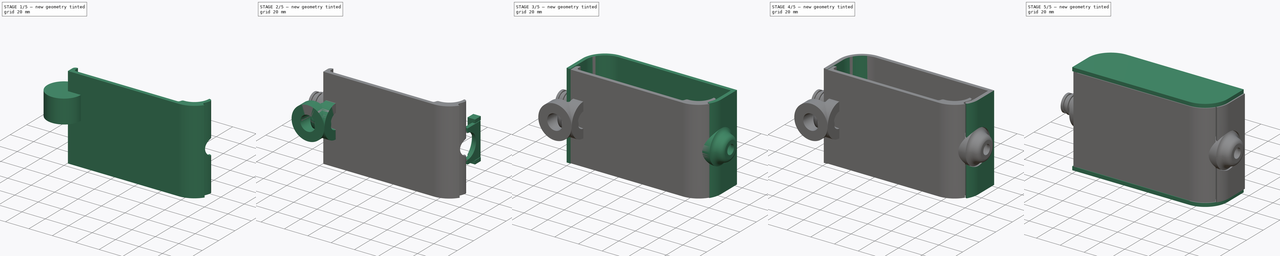
[diagram: build sequence overview — one tinted view per stage of 5, left to right]
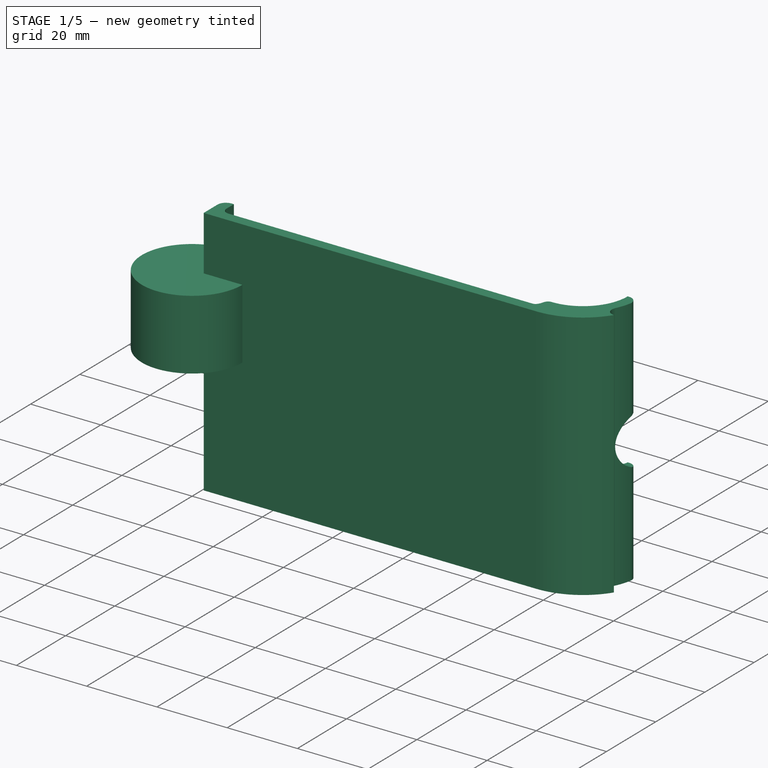
[diagram: stage 1 of 5 — iso view after this stage's code; geometry added in this stage tinted green]
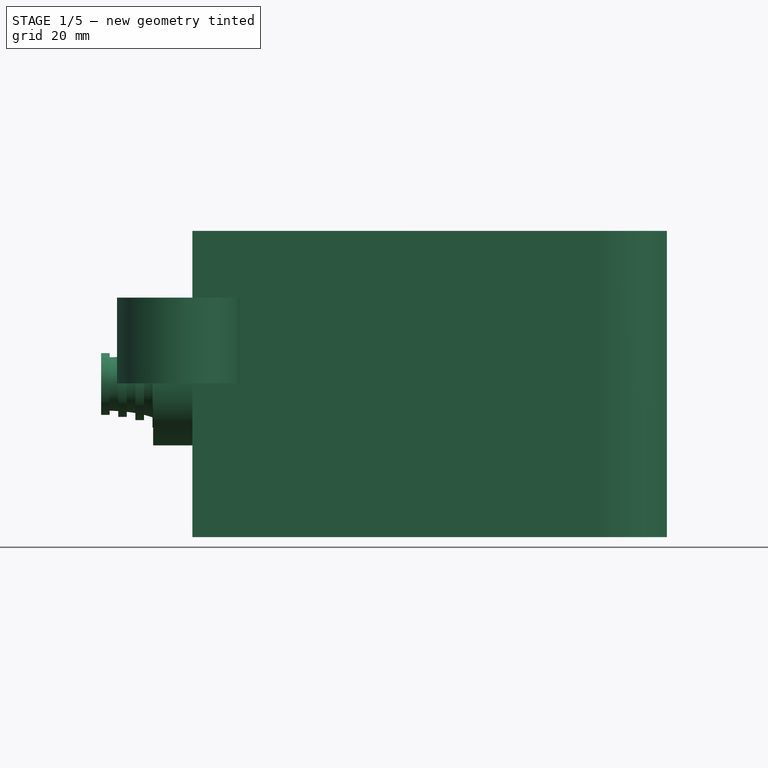
[diagram: stage 1 of 5 — front view after this stage's code; geometry added in this stage tinted green]
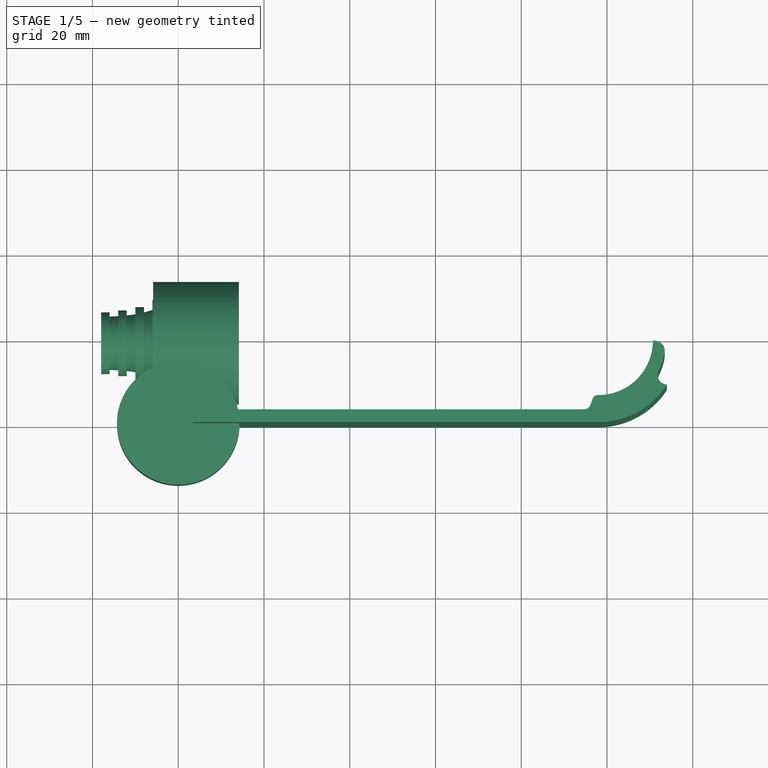
[diagram: stage 1 of 5 — top view after this stage's code; geometry added in this stage tinted green]
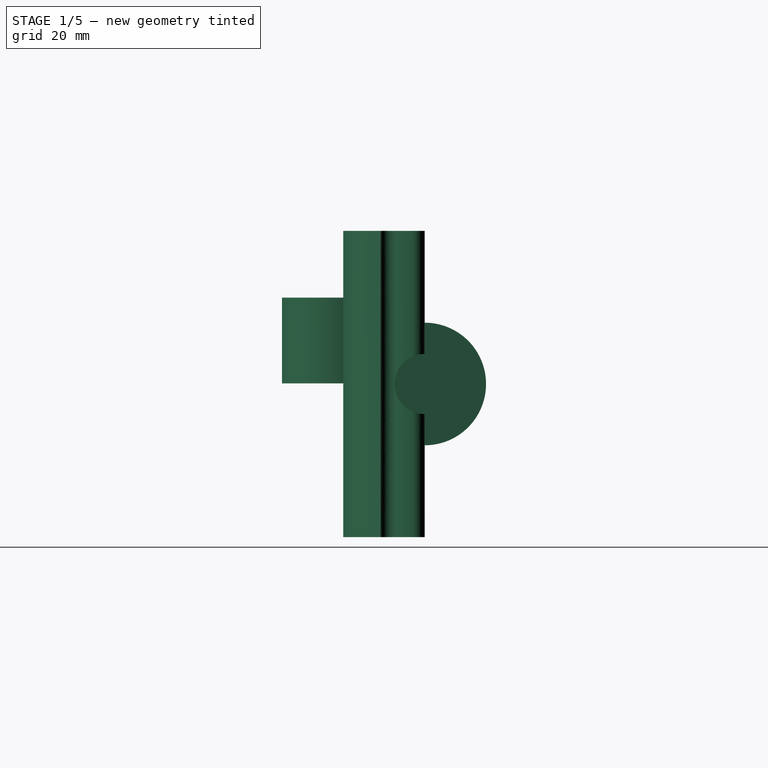
[diagram: stage 1 of 5 — right view after this stage's code; geometry added in this stage tinted green]
FCSTD DOCUMENT  (FreeCAD 0.19R0.19.2)
Label: enclosure_035
License: All rights reserved
LicenseURL: http://en.wikipedia.org/wiki/All_rights_reserved
objects: Part::MultiFuse×32, Part::Feature×26, Part::Revolution×26, Part::Cylinder×14, Sketcher::SketchObject×9, Part::Cut×8, Part::Extrusion×7, Part::Fillet×4, Part::Box×4, App::MeasureDistance×2
note: 130 computed .brp shape members not serialized (recipe doc carries the construction recipe); baked Part::Feature solids carry a one-line shape summary decoded from their .brp

FEATURE [Part::Extrusion] Extrude001  label="bottom"
  Base = -> Sketch001
  Dir = (0,0,1)
  DirMode = 2
  FaceMakerClass = Part::FaceMakerBullseye
  LengthFwd = 71.4
  LengthRev = 0
  Placement = pos=(0,0,0.3) rot=(0,0,1;0rad)
  Solid = true
  Symmetric = false
FEATURE [App::MeasureDistance] Distance  label="Distance: 0.69 mm"
  Distance = 0.685967
  P1 = (24.0138,2.9647,0.3)
  P2 = (23.8901,3,-0.373787)
FEATURE [App::MeasureDistance] Distance001  label="Distance: 0.53 mm"
  Distance = 0.533607
  P1 = (80.2939,3,72.2334)
  P2 = (80.281,2.99661,71.7)
FEATURE [Part::Fillet] Fillet001
  Base = -> Extrude001
  Edges = 1 edges r=2.4: [Edge17]
FEATURE [Part::Fillet] Fillet002  label="bottom001"
  Base = -> Fillet001
  Edges = 1 edges r=2.4: [Edge36]
FEATURE [Part::Cylinder] Cylinder002
  Angle = 360
  AttacherType = Attacher::AttachEngine3D
  Height = 20
  Placement = pos=(0,0,36.15) rot=(0,0,1;0rad)
  Radius = 4
FEATURE [Part::Cylinder] Cylinder003
  Angle = 360
  AttacherType = Attacher::AttachEngine3D
  Height = 10
  Placement = pos=(0,0,36.15) rot=(0,0,1;0rad)
  Radius = 4
FEATURE [Part::MultiFuse] Fusion009  label="removeToCreateHoleForPlugHousing"
  Placement = pos=(70,19,36.15) rot=(0,1,0;1.5708rad)
  Shapes = -> [Cylinder002,Cylinder003]
FEATURE [Part::Cut] Cut002  label="Bottom"
  Base = -> Fillet002
  Tool = -> Fusion009
FEATURE [Part::Cylinder] Cylinder010
  Angle = 360
  AttacherType = Attacher::AttachEngine3D
  Height = 20
  Placement = pos=(0,0,36.15) rot=(0,0,1;0rad)
  Radius = 14.3
FEATURE [Part::Cylinder] Cylinder011
  Angle = 360
  AttacherType = Attacher::AttachEngine3D
  Height = 10
  Placement = pos=(0,0,36.15) rot=(0,0,1;0rad)
  Radius = 4
FEATURE [Part::Cylinder] Cylinder012
  Angle = 360
  AttacherType = Attacher::AttachEngine3D
  Height = 20
  Placement = pos=(0,0,36.15) rot=(0,0,1;0rad)
  Radius = 7
FEATURE [Part::Cylinder] Cylinder013
  Angle = 360
  AttacherType = Attacher::AttachEngine3D
  Height = 10
  Placement = pos=(0,0,36.15) rot=(0,0,1;0rad)
  Radius = 4
FEATURE [Part::MultiFuse] Fusion032  label="removeToCreteHoleForPlugHousing003"
  Placement = pos=(70,19,36) rot=(0,1,0;1.5708rad)
  Shapes = -> [Cylinder012,Cylinder013]
FEATURE [Part::Cut] Cut007  label="bottom002"
  Base = -> Cut002
  Tool = -> Fusion032
FEATURE [Sketcher::SketchObject] Sketch008
  FullyConstrained = true
  sketch-geometry (54):
    g0: LineSegment StartX=-4.2 StartY=0 StartZ=0 EndX=-6.2 EndY=0 EndZ=0
    g1: LineSegment StartX=-14 StartY=-18 StartZ=0 EndX=-14 EndY=-26.5 EndZ=0
    g2: LineSegment StartX=-4.2 StartY=0 StartZ=0 EndX=-4.2 EndY=-13.4877 EndZ=0
    g3: Circle CenterX=-4.2 CenterY=-13.4877 CenterZ=0 NormalX=0 NormalY=0 NormalZ=1 AngleXU=0 Radius=1
    g4: Circle CenterX=-4.2 CenterY=-26.5 CenterZ=0 NormalX=0 NormalY=0 NormalZ=1 AngleXU=0 Radius=1
    g5: Circle CenterX=-8.2 CenterY=-26.5 CenterZ=0 NormalX=0 NormalY=0 NormalZ=1 AngleXU=0 Radius=1
    g6: BSplineCurve PolesCount=3 KnotsCount=2 Degree=2 IsPeriodic=0
    g7: GeomPoint X=-4.2 Y=-13.4877 Z=0
    g8: GeomPoint X=-8.2 Y=-26.5 Z=0
    g9: LineSegment StartX=-14 StartY=-26.5 StartZ=0 EndX=-8.2 EndY=-26.5 EndZ=0
    g10: LineSegment StartX=-10.15 StartY=-12 StartZ=0 EndX=-10.15 EndY=-14 EndZ=0
    g11: LineSegment StartX=-12.8401 StartY=-16 StartZ=0 EndX=-10.1571 EndY=-16 EndZ=0
    g12: LineSegment StartX=-10.15 StartY=-14 StartZ=0 EndX=-8.70761 EndY=-14 EndZ=0
    g13: LineSegment StartX=-12.8401 StartY=-16 StartZ=0 EndX=-12.8401 EndY=-17.6958 EndZ=0
    g14: LineSegment StartX=-10.15 StartY=-12 StartZ=0 EndX=-7.79258 EndY=-12 EndZ=0
    g15: Circle CenterX=-6.2215 CenterY=-2 CenterZ=0 NormalX=0 NormalY=0 NormalZ=1 AngleXU=0 Radius=1
    g16: Circle CenterX=-6.22762 CenterY=-2.58724 CenterZ=0 NormalX=0 NormalY=0 NormalZ=1 AngleXU=0 Radius=1
    g17: Circle CenterX=-6.32538 CenterY=-4 CenterZ=0 NormalX=0 NormalY=0 NormalZ=1 AngleXU=0 Radius=1
    g18: BSplineCurve PolesCount=3 KnotsCount=2 Degree=2 IsPeriodic=0
    g19: GeomPoint X=-6.2215 Y=-2 Z=0
    g20: GeomPoint X=-6.32538 Y=-4 Z=0
    g21: Circle CenterX=-6.48644 CenterY=-5.99526 CenterZ=0 NormalX=0 NormalY=0 NormalZ=1 AngleXU=0 Radius=1
    g22: Circle CenterX=-6.58486 CenterY=-6.99526 CenterZ=0 NormalX=0 NormalY=0 NormalZ=1 AngleXU=0 Radius=1
    g23: Circle CenterX=-6.77343 CenterY=-8 CenterZ=0 NormalX=0 NormalY=0 NormalZ=1 AngleXU=0 Radius=1
    g24: BSplineCurve PolesCount=3 KnotsCount=2 Degree=2 IsPeriodic=0
    g25: GeomPoint X=-6.48644 Y=-5.99526 Z=0
    g26: GeomPoint X=-6.77343 Y=-8 Z=0
    g27: Circle CenterX=-7.19003 CenterY=-10 CenterZ=0 NormalX=0 NormalY=0 NormalZ=1 AngleXU=0 Radius=1
    g28: Circle CenterX=-7.44407 CenterY=-11.0915 CenterZ=0 NormalX=0 NormalY=0 NormalZ=1 AngleXU=0 Radius=1
    g29: Circle CenterX=-7.79258 CenterY=-12 CenterZ=0 NormalX=0 NormalY=0 NormalZ=1 AngleXU=0 Radius=1
    g30: BSplineCurve PolesCount=3 KnotsCount=2 Degree=2 IsPeriodic=0
    g31: GeomPoint X=-7.19003 Y=-10 Z=0
    g32: GeomPoint X=-7.79258 Y=-12 Z=0
    g33: Circle CenterX=-8.70761 CenterY=-14 CenterZ=0 NormalX=0 NormalY=0 NormalZ=1 AngleXU=0 Radius=1
    g34: Circle CenterX=-9.33087 CenterY=-15.1837 CenterZ=0 NormalX=0 NormalY=0 NormalZ=1 AngleXU=0 Radius=1
    g35: Circle CenterX=-10.1571 CenterY=-16 CenterZ=0 NormalX=0 NormalY=0 NormalZ=1 AngleXU=0 Radius=1
    g36: BSplineCurve PolesCount=3 KnotsCount=2 Degree=2 IsPeriodic=0
    g37: GeomPoint X=-8.70761 Y=-14 Z=0
    g38: GeomPoint X=-10.1571 Y=-16 Z=0
    g39: Circle CenterX=-12.8401 CenterY=-17.6958 CenterZ=0 NormalX=0 NormalY=0 NormalZ=1 AngleXU=0 Radius=1
    g40: Circle CenterX=-13.3521 CenterY=-17.9027 CenterZ=0 NormalX=0 NormalY=0 NormalZ=1 AngleXU=0 Radius=1
    g41: Circle CenterX=-14 CenterY=-18 CenterZ=0 NormalX=0 NormalY=0 NormalZ=1 AngleXU=0 Radius=1
    g42: BSplineCurve PolesCount=3 KnotsCount=2 Degree=2 IsPeriodic=0
    g43: GeomPoint X=-12.8401 Y=-17.6958 Z=0
    g44: GeomPoint X=-14 Y=-18 Z=0
    g45: LineSegment StartX=-6.2 StartY=0 StartZ=0 EndX=-7.2 EndY=0 EndZ=0
    g46: LineSegment StartX=-7.2 StartY=0 StartZ=0 EndX=-7.2 EndY=-2 EndZ=0
    g47: LineSegment StartX=-7.2 StartY=-2 StartZ=0 EndX=-6.2215 EndY=-2 EndZ=0
    g48: LineSegment StartX=-6.32538 StartY=-4 StartZ=0 EndX=-7.65538 EndY=-4 EndZ=0
    g49: LineSegment StartX=-7.65538 StartY=-4 StartZ=0 EndX=-7.65538 EndY=-5.99526 EndZ=0
    g50: LineSegment StartX=-7.65538 StartY=-5.99526 StartZ=0 EndX=-6.48644 EndY=-5.99526 EndZ=0
    g51: LineSegment StartX=-6.77343 StartY=-8 StartZ=0 EndX=-8.43343 EndY=-8 EndZ=0
    g52: LineSegment StartX=-8.43343 StartY=-8 StartZ=0 EndX=-8.43343 EndY=-10 EndZ=0
    g53: LineSegment StartX=-8.43343 StartY=-10 StartZ=0 EndX=-7.19003 EndY=-10 EndZ=0
  constraints (112):
    c: Horizontal(g0)
    c: Distance(g0) = 2
    c: Block(g0)
    c: Vertical(g1)
    c: Coincident(g2,g0)
    c: Vertical(g2)
    c: Block(g2)
    c: Coincident(g6,g2)
    c: Weight(g3) = 1
    c: Equal(g3,g4)
    c: Equal(g3,g5)
    c: InternalAlignment(g3,g6)
    c: InternalAlignment(g4,g6)
    c: InternalAlignment(g5,g6)
    c: InternalAlignment(g7,g6)
    c: InternalAlignment(g8,g6)
    c: Block(g6)
    c: Coincident(g9,g1)
    c: Coincident(g9,g6)
    c: Horizontal(g9)
    c: Vertical(g10)
    c: Block(g10)
    c: Horizontal(g11)
    c: Block(g11)
    c: Coincident(g12,g10)
    c: Horizontal(g12)
    c: Block(g12)
    c: Coincident(g13,g11)
    c: Vertical(g13)
    c: Block(g13)
    c: Coincident(g14,g10)
    c: Horizontal(g14)
    c: Block(g14)
    c: Block(g9)
    c: Block(g1)
    c: Weight(g15) = 1
    c: Equal(g15,g16)
    c: Equal(g15,g17)
    c: InternalAlignment(g15,g18)
    c: InternalAlignment(g16,g18)
    c: InternalAlignment(g17,g18)
    c: InternalAlignment(g19,g18)
    c: InternalAlignment(g20,g18)
    c: Weight(g21) = 1
    c: Equal(g21,g22)
    c: Equal(g21,g23)
    c: InternalAlignment(g21,g24)
    c: InternalAlignment(g22,g24)
    c: InternalAlignment(g23,g24)
    c: InternalAlignment(g25,g24)
    c: InternalAlignment(g26,g24)
    c: Weight(g27) = 1
    c: Equal(g27,g28)
    c: Equal(g27,g29)
    c: Coincident(g30,g14)
    c: InternalAlignment(g27,g30)
    c: InternalAlignment(g28,g30)
    c: InternalAlignment(g29,g30)
    c: InternalAlignment(g31,g30)
    c: InternalAlignment(g32,g30)
    c: Coincident(g36,g12)
    c: Weight(g33) = 1
    c: Equal(g33,g34)
    c: Equal(g33,g35)
    c: Coincident(g36,g11)
    c: InternalAlignment(g33,g36)
    c: InternalAlignment(g34,g36)
    c: InternalAlignment(g35,g36)
    c: InternalAlignment(g37,g36)
    c: InternalAlignment(g38,g36)
    c: Coincident(g42,g13)
    c: Weight(g39) = 1
    c: Equal(g39,g40)
    c: Equal(g39,g41)
    c: Coincident(g42,g1)
    c: InternalAlignment(g39,g42)
    c: InternalAlignment(g40,g42)
    c: InternalAlignment(g41,g42)
    c: InternalAlignment(g43,g42)
    c: InternalAlignment(g44,g42)
    c: Block(g18)
    c: Block(g24)
    c: Block(g30)
    c: Block(g36)
    c: Block(g42)
    c: Horizontal(g45)
    c: Coincident(g45,g0)
    c: Vertical(g46)
    c: Coincident(g46,g45)
    c: Coincident(g47,g46)
    c: Coincident(g47,g18)
    c: Horizontal(g47)
    c: Block(g46)
    c: Coincident(g48,g18)
    c: Horizontal(g48)
    c: Distance(g48) = 1.33
    c: Vertical(g49)
    c: Coincident(g49,g48)
    c: Coincident(g50,g49)
    c: Coincident(g50,g24)
    c: Horizontal(g50)
    c: Tangent(g50,g22)
    c: Horizontal(g51)
    c: Coincident(g51,g24)
    c: Block(g51)
    c: Vertical(g52)
    c: Block(g52)
    c: Coincident(g52,g51)
    c: Coincident(g53,g52)
    c: Coincident(g53,g30)
    c: Horizontal(g53)
    c: Distance(g1) = 8.5
FEATURE [Part::Feature] Face024
  shape: bbox 9.8 x 26.5 x 2e-07 mm, 1 faces, 0 solids (baked)
FEATURE [Part::Revolution] Revolve024
  Angle = 360
  Axis = (0,1,0)
  Base = (0,0,0)
  FaceMakerClass = Part::FaceMakerBullseye
  Placement = pos=(0,0,0) rot=(0,0,1;1.5708rad)
  Solid = false
  Source = -> Face024
  Symmetric = false
FEATURE [Part::Feature] Face025
  shape: bbox 9.8 x 26.5 x 2e-07 mm, 1 faces, 0 solids (baked)
FEATURE [Part::Revolution] Revolve025
  Angle = 360
  Axis = (0,1,0)
  Base = (0,0,0)
  FaceMakerClass = Part::FaceMakerBullseye
  Placement = pos=(0,0,0) rot=(0,0,1;1.5708rad)
  Solid = false
  Source = -> Face025
  Symmetric = false
FEATURE [Part::MultiFuse] Fusion033
  Placement = pos=(-18,19,36) rot=(0,0,1;0rad)
  Shapes = -> [Revolve025,Revolve024]
FEATURE [Part::Cylinder] Cylinder014
  Angle = 360
  AttacherType = Attacher::AttachEngine3D
  Height = 20
  Placement = pos=(0,0,36.15) rot=(0,0,1;0rad)
  Radius = 14.3
FEATURE [Part::Cylinder] Cylinder015
  Angle = 360
  AttacherType = Attacher::AttachEngine3D
  Height = 10
  Placement = pos=(0,0,36.15) rot=(0,0,1;0rad)
  Radius = 4
FEATURE [Part::MultiFuse] Fusion034  label="removeToCreteHoleForPlugHousing004"
  Placement = pos=(-42,19,36) rot=(0,1,0;1.5708rad)
  Shapes = -> [Cylinder014,Cylinder015]
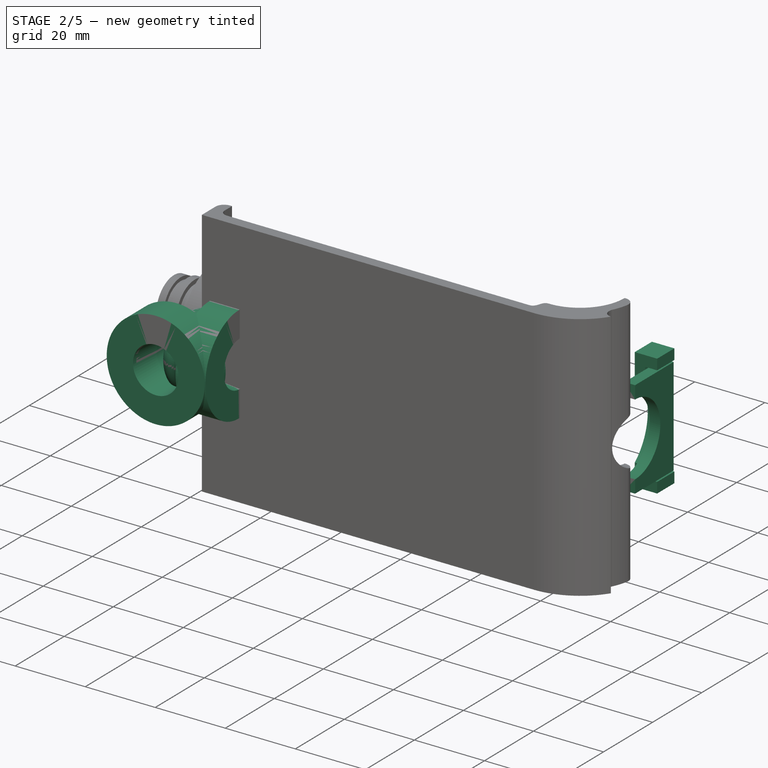
[diagram: stage 2 of 5 — iso view after this stage's code; geometry added in this stage tinted green]
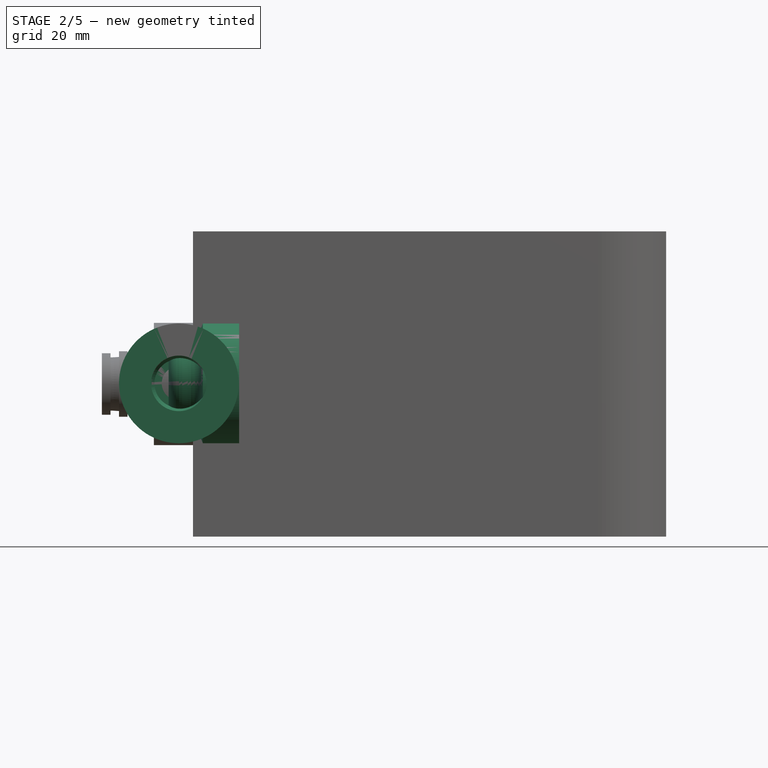
[diagram: stage 2 of 5 — front view after this stage's code; geometry added in this stage tinted green]
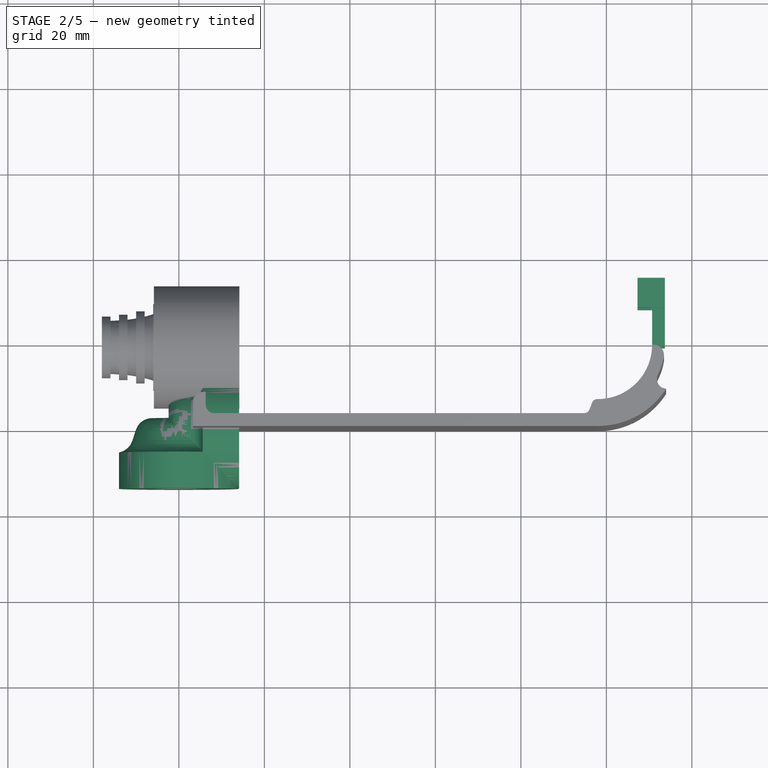
[diagram: stage 2 of 5 — top view after this stage's code; geometry added in this stage tinted green]
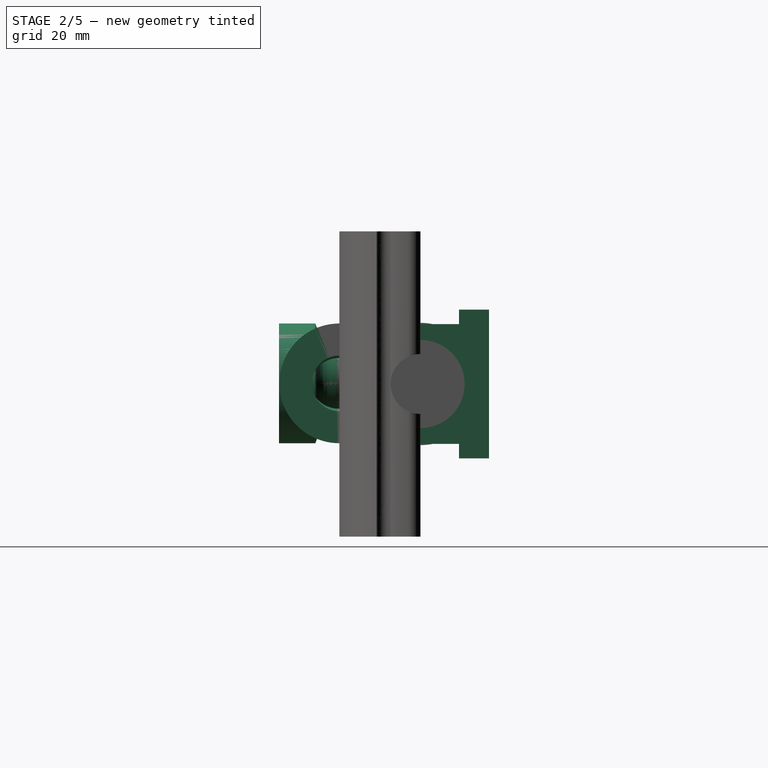
[diagram: stage 2 of 5 — right view after this stage's code; geometry added in this stage tinted green]
FEATURE [Part::Feature] Face016
  shape: bbox 10 x 16.5 x 2e-07 mm, 1 faces, 0 solids (baked)
FEATURE [Part::Revolution] Revolve019  label="plugHousing033"
  Angle = 360
  Axis = (0,1,0)
  Base = (0,0,0)
  FaceMakerClass = Part::FaceMakerBullseye
  Placement = pos=(0,0,36.15) rot=(0,0,1;0rad)
  Solid = false
  Source = -> Face016
  Symmetric = false
FEATURE [Part::Feature] Face017
  shape: bbox 10 x 16.5 x 2e-07 mm, 1 faces, 0 solids (baked)
FEATURE [Part::Revolution] Revolve020  label="plugHousing034"
  Angle = 360
  Axis = (0,1,0)
  Base = (0,0,0)
  FaceMakerClass = Part::FaceMakerBullseye
  Placement = pos=(0,0,36.15) rot=(0,0,1;0rad)
  Solid = false
  Source = -> Face017
  Symmetric = false
FEATURE [Part::Feature] Face018
  shape: bbox 10 x 16.5 x 2e-07 mm, 1 faces, 0 solids (baked)
FEATURE [Part::Revolution] Revolve016  label="plugHousing030"
  Angle = 360
  Axis = (0,1,0)
  Base = (0,0,0)
  FaceMakerClass = Part::FaceMakerBullseye
  Placement = pos=(0,0,36.15) rot=(0,0,1;0rad)
  Solid = false
  Source = -> Face018
  Symmetric = false
FEATURE [Part::MultiFuse] Fusion020  label="plugHousing038"
  Placement = pos=(0,0,0) rot=(0,0,1;1.5708rad)
  Shapes = -> [Revolve016,Revolve020]
FEATURE [Part::Feature] Face019
  shape: bbox 10 x 16.5 x 2e-07 mm, 1 faces, 0 solids (baked)
FEATURE [Part::Feature] Face020
  shape: bbox 10 x 16.5 x 2e-07 mm, 1 faces, 0 solids (baked)
FEATURE [Part::Revolution] Revolve017  label="plugHousing031"
  Angle = 360
  Axis = (0,1,0)
  Base = (0,0,0)
  FaceMakerClass = Part::FaceMakerBullseye
  Placement = pos=(0,0,36.15) rot=(0,0,1;0rad)
  Solid = false
  Source = -> Face020
  Symmetric = false
FEATURE [Part::MultiFuse] Fusion021  label="plugHousing039"
  Placement = pos=(0,0,0) rot=(0,0,1;1.5708rad)
  Shapes = -> [Revolve019,Revolve017]
FEATURE [Part::Revolution] Revolve022  label="plugHousing043"
  Angle = 360
  Axis = (0,1,0)
  Base = (0,0,0)
  FaceMakerClass = Part::FaceMakerBullseye
  Placement = pos=(0,0,36.15) rot=(0,0,1;0rad)
  Solid = false
  Source = -> Face019
  Symmetric = false
FEATURE [Part::Feature] Face021
  shape: bbox 10 x 16.5 x 2e-07 mm, 1 faces, 0 solids (baked)
FEATURE [Part::Revolution] Revolve023  label="plugHousing044"
  Angle = 360
  Axis = (0,1,0)
  Base = (0,0,0)
  FaceMakerClass = Part::FaceMakerBullseye
  Placement = pos=(0,0,36.15) rot=(0,0,1;0rad)
  Solid = false
  Source = -> Face021
  Symmetric = false
FEATURE [Part::Box] Box001  label="Cube001"
  AttacherType = Attacher::AttachEngine3D
  Height = 28
  Length = 3
  Placement = pos=(110.7,19,22) rot=(0,0,1;0rad)
  Width = 15.7
FEATURE [Part::Cylinder] Cylinder008
  Angle = 360
  AttacherType = Attacher::AttachEngine3D
  Height = 20
  Placement = pos=(0,0,36.15) rot=(0,0,1;0rad)
  Radius = 10.3
FEATURE [Part::Cylinder] Cylinder009
  Angle = 360
  AttacherType = Attacher::AttachEngine3D
  Height = 10
  Placement = pos=(0,0,36.15) rot=(0,0,1;0rad)
  Radius = 4
FEATURE [Part::MultiFuse] Fusion027  label="removeToCreteHoleForPlugHousing001"
  Placement = pos=(70,19,36) rot=(0,1,0;1.5708rad)
  Shapes = -> [Cylinder008,Cylinder009]
FEATURE [Part::Cut] Cut005  label="plugHousingTab"
  Base = -> Box001
  Tool = -> Fusion027
FEATURE [Part::Box] Box002  label="Cube002"
  AttacherType = Attacher::AttachEngine3D
  Height = 28.8
  Length = 3
  Placement = pos=(107.3,28,21.6) rot=(0,0,1;0rad)
  Width = 7
FEATURE [Part::Box] Box003  label="Cube003"
  AttacherType = Attacher::AttachEngine3D
  Height = 3
  Length = 6.4
  Placement = pos=(107.3,28,18.6) rot=(0,0,1;0rad)
  Width = 7
FEATURE [Part::Box] Box004  label="Cube004"
  AttacherType = Attacher::AttachEngine3D
  Height = 3
  Length = 6.4
  Placement = pos=(107.3,28,50.4) rot=(0,0,1;0rad)
  Width = 7
FEATURE [Part::MultiFuse] Fusion029  label="plugHousingBracketHolder"
  Shapes = -> [Box004,Box002,Box003]
FEATURE [Part::MultiFuse] Fusion030  label="removeToCreteHoleForPlugHousing002"
  Placement = pos=(70,19,36) rot=(0,1,0;1.5708rad)
  Shapes = -> [Cylinder010,Cylinder011]
FEATURE [Part::Cut] Cut006  label="plugHousingBracketHolder001"
  Base = -> Fusion029
  Tool = -> Fusion030
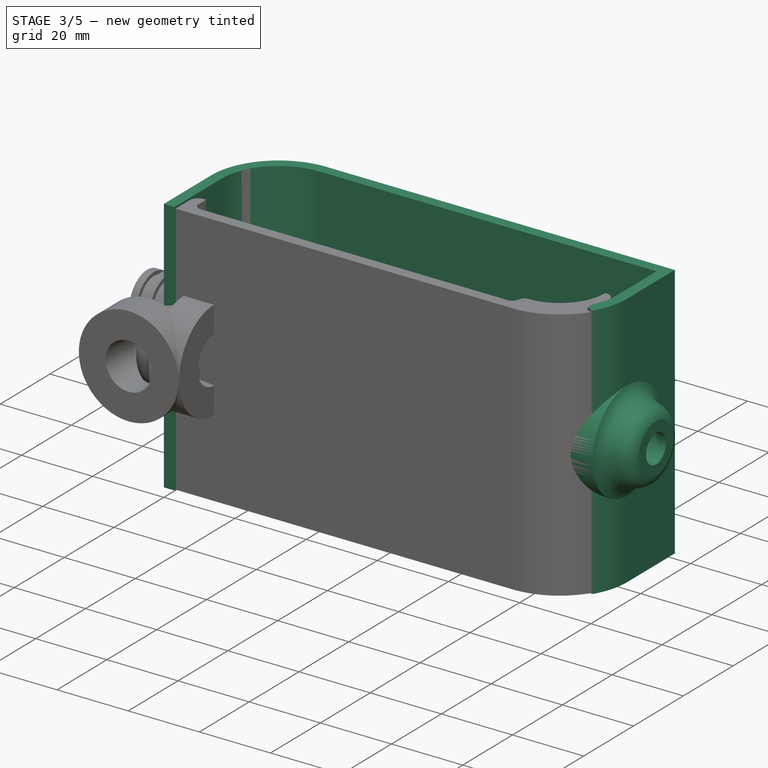
[diagram: stage 3 of 5 — iso view after this stage's code; geometry added in this stage tinted green]
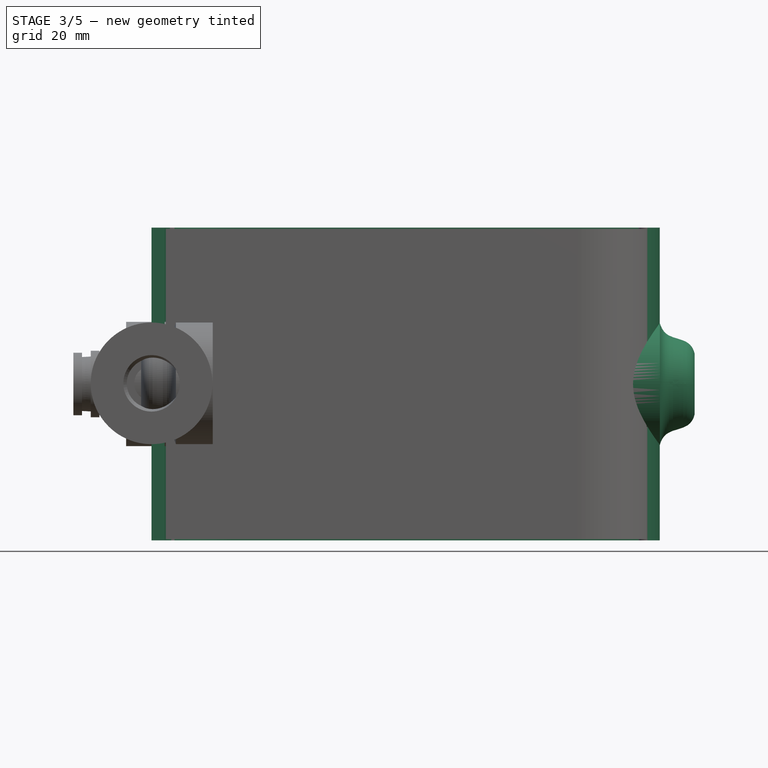
[diagram: stage 3 of 5 — front view after this stage's code; geometry added in this stage tinted green]
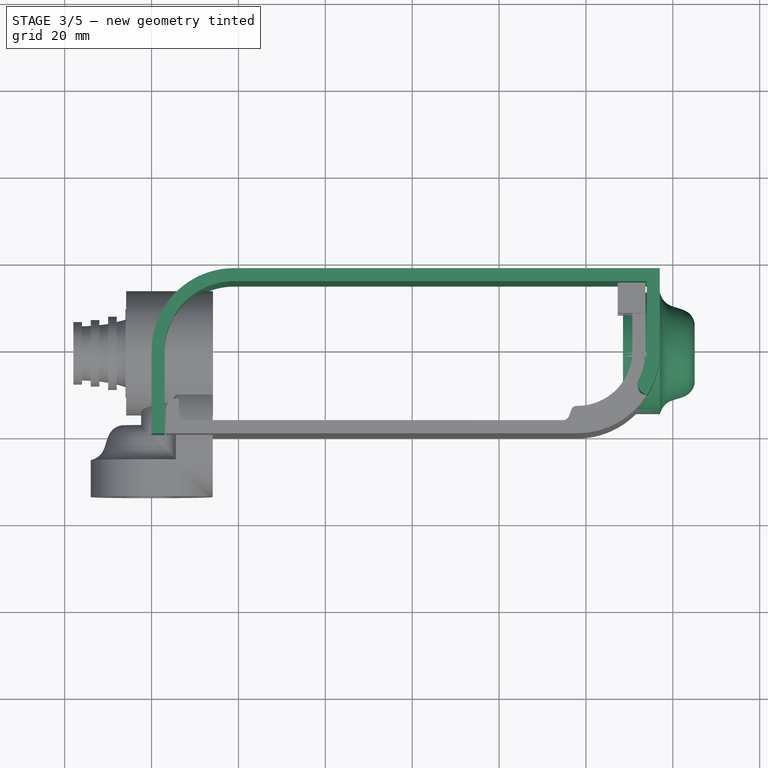
[diagram: stage 3 of 5 — top view after this stage's code; geometry added in this stage tinted green]
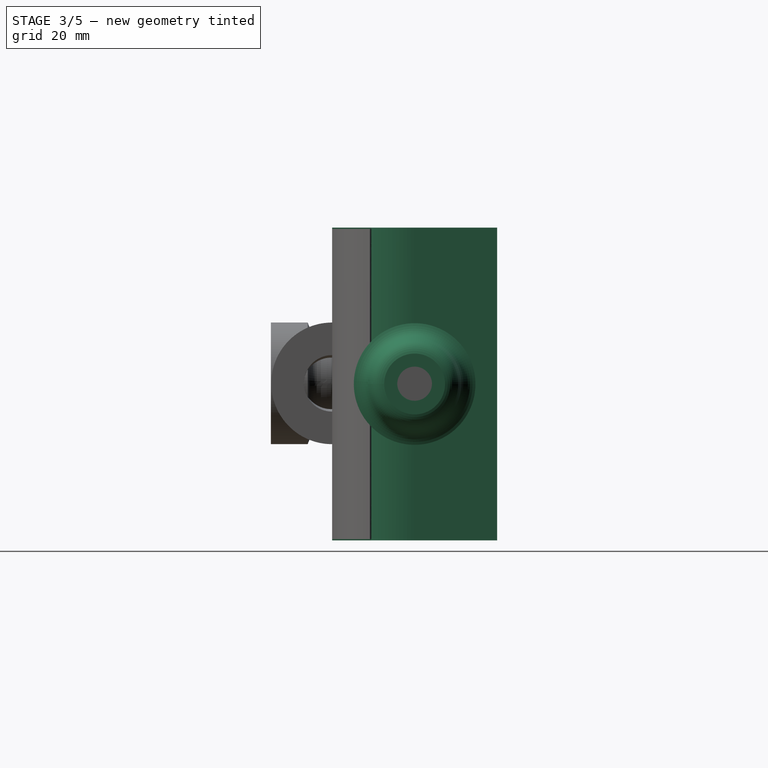
[diagram: stage 3 of 5 — right view after this stage's code; geometry added in this stage tinted green]
FEATURE [Sketcher::SketchObject] Sketch  label="topSketch"
  FullyConstrained = true
  sketch-geometry (13):
    g0: LineSegment StartX=117 StartY=19 StartZ=0 EndX=117 EndY=38 EndZ=0
    g1: ArcOfCircle CenterX=98 CenterY=19 CenterZ=0 NormalX=0 NormalY=0 NormalZ=1 AngleXU=0 Radius=19 StartAngle=5.7297 EndAngle=6.28319
    g2: LineSegment StartX=0 StartY=3 StartZ=0 EndX=0 EndY=19 EndZ=0
    g3: LineSegment StartX=19 StartY=38 StartZ=0 EndX=117 EndY=38 EndZ=0
    g4: ArcOfCircle CenterX=19 CenterY=19 CenterZ=0 NormalX=0 NormalY=0 NormalZ=1 AngleXU=0 Radius=19 StartAngle=1.5708 EndAngle=3.14159
    g5: ArcOfCircle CenterX=19 CenterY=19 CenterZ=0 NormalX=0 NormalY=0 NormalZ=1 AngleXU=0 Radius=16 StartAngle=1.5708 EndAngle=3.14159
    g6: ArcOfCircle CenterX=98 CenterY=19 CenterZ=0 NormalX=0 NormalY=0 NormalZ=1 AngleXU=0 Radius=16 StartAngle=5.60905 EndAngle=6.28319
    g7: LineSegment StartX=114 StartY=19 StartZ=0 EndX=114 EndY=35 EndZ=0
    g8: LineSegment StartX=110.5 StartY=9.01251 StartZ=0 EndX=114.163 EndY=9.01251 EndZ=0
    g9: LineSegment StartX=114 StartY=35 StartZ=0 EndX=19 EndY=35 EndZ=0
    g10: LineSegment StartX=0 StartY=3 StartZ=0 EndX=0 EndY=0 EndZ=0
    g11: LineSegment StartX=3 StartY=0 StartZ=0 EndX=0 EndY=0 EndZ=0
    g12: LineSegment StartX=3 StartY=19 StartZ=0 EndX=3 EndY=0 EndZ=0
  constraints (33):
    c: Vertical(g0)
    c: Distance(g0) = 19
    c: Block(g0)
    c: Coincident(g1,g0)
    c: Block(g1)
    c: Vertical(g2)
    c: Block(g2)
    c: Coincident(g3,g0)
    c: Horizontal(g3)
    c: Distance(g3) = 98
    c: Coincident(g4,g3)
    c: Coincident(g4,g2)
    c: Block(g4)
    c: Coincident(g5,g4)
    c: Coincident(g6,g1)
    c: Block(g6)
    c: Block(g5)
    c: Coincident(g7,g6)
    c: Vertical(g7)
    c: Coincident(g8,g6)
    c: Coincident(g8,g1)
    c: Coincident(g9,g7)
    c: Coincident(g9,g5)
    c: Horizontal(g9)
    c: Tangent(g9,g5)
    c: Coincident(g10,g2)
    c: Distance(g10) = 3
    c: Vertical(g10)
    c: Coincident(g11,g10)
    c: Horizontal(g11)
    c: Coincident(g12,g5)
    c: Coincident(g12,g11)
    c: Vertical(g12)
FEATURE [Sketcher::SketchObject] Sketch001  label="bottomSketch"
  FullyConstrained = true
  sketch-geometry (32):
    g0: LineSegment StartX=3.3 StartY=-6.03275e-07 StartZ=0 EndX=98 EndY=-6.03275e-07 EndZ=0
    g1: ArcOfCircle CenterX=98 CenterY=19 CenterZ=0 NormalX=0 NormalY=0 NormalZ=1 AngleXU=0 Radius=19 StartAngle=4.71239 EndAngle=5.71103
    g2: LineSegment StartX=6.3 StartY=8 StartZ=0 EndX=3.3 EndY=8 EndZ=0
    g3: LineSegment StartX=3.3 StartY=8 StartZ=0 EndX=3.3 EndY=-6.03275e-07 EndZ=0
    g4: ArcOfCircle CenterX=8.3 CenterY=5 CenterZ=0 NormalX=0 NormalY=0 NormalZ=1 AngleXU=0 Radius=2 StartAngle=3.14159 EndAngle=4.71239
    g5: LineSegment StartX=6.3 StartY=8 StartZ=0 EndX=6.3 EndY=5 EndZ=0
    g6: ArcOfCircle CenterX=98 CenterY=19 CenterZ=0 NormalX=0 NormalY=0 NormalZ=1 AngleXU=0 Radius=12.7 StartAngle=4.71239 EndAngle=6.28319
    g7: LineSegment StartX=94.7 StartY=3 StartZ=0 EndX=8.3 EndY=3 EndZ=0
    g8-g12: Circle x5 (B-spline internal-alignment scaffolding for g13; pole/knot coordinates omitted)
    g13: BSplineCurve PolesCount=5 KnotsCount=3 Degree=3 IsPeriodic=0
    g14: GeomPoint X=98 Y=6.3 Z=0
    g15: GeomPoint X=96.3938 Y=4.71946 Z=0
    g16: GeomPoint X=94.7 Y=3 Z=0
    g17-g23: Circle x7 (B-spline internal-alignment scaffolding for g24; pole/knot coordinates omitted)
    g24: BSplineCurve PolesCount=7 KnotsCount=5 Degree=3 IsPeriodic=0
    g25-g29: GeomPoint x5 (B-spline internal-alignment scaffolding for g24; pole/knot coordinates omitted)
    g30: ArcOfCircle CenterX=98 CenterY=19 CenterZ=0 NormalX=0 NormalY=0 NormalZ=1 AngleXU=0 Radius=15.7 StartAngle=5.81226 EndAngle=6.28319
    g31: LineSegment StartX=110.7 StartY=19 StartZ=0 EndX=113.7 EndY=19 EndZ=0
  constraints (41):
    c: Horizontal(g0)
    c: Coincident(g1,g0)
    c: Block(g1)
    c: Horizontal(g2)
    c: Distance(g2) = 3
    c: Coincident(g3,g2)
    c: Vertical(g3)
    c: Coincident(g3,g0)
    c: Block(g4)
    c: Block(g2)
    c: Coincident(g5,g2)
    c: Coincident(g5,g4)
    c: Vertical(g5)
    c: Coincident(g6,g1)
    c: Block(g6)
    c: Coincident(g7,g4)
    c: Horizontal(g7)
    c: Block(g0)
    c: Block(g7)
    c: Block(g3)
    c: Coincident(g13,g6)
    c: Weight(g8) = 1
    c: Equal(g8, g9-g12) x4
    c: Coincident(g13,g7)
    c: InternalAlignment(g8-g12 -> g13) x5
    c: InternalAlignment(g14,g13)
    c: InternalAlignment(g15,g13)
    c: InternalAlignment(g16,g13)
    c: Block(g13)
    c: Weight(g17) = 1
    c: Equal(g17, g18-g23) x6
    c: Coincident(g24,g1)
    c: InternalAlignment(g17-g23 -> g24) x7
    c: InternalAlignment(g25-g29 -> g24) x5
    c: Block(g24)
    c: Coincident(g30,g24)
    c: Coincident(g31,g6)
    c: Coincident(g31,g30)
    c: Horizontal(g31)
    c: Block(g31)
    c: Block(g30)
FEATURE [Part::Extrusion] Extrude  label="top"
  Base = -> Sketch
  Dir = (0,0,1)
  DirMode = 2
  FaceMakerClass = Part::FaceMakerBullseye
  LengthFwd = 72
  LengthRev = 0
  Solid = true
  Symmetric = false
FEATURE [Part::Fillet] Fillet003  label="top001"
  Base = -> Extrude
  Edges = 1 edges r=2: [Edge1]
FEATURE [Part::Feature] Face004
  shape: bbox 10 x 16.5 x 2e-07 mm, 1 faces, 0 solids (baked)
FEATURE [Part::Revolution] Revolve006  label="plugHousing010"
  Angle = 360
  Axis = (0,1,0)
  Base = (0,0,0)
  FaceMakerClass = Part::FaceMakerBullseye
  Placement = pos=(0,0,36.15) rot=(0,0,1;0rad)
  Solid = false
  Source = -> Face004
  Symmetric = false
FEATURE [Part::Feature] Face005
  shape: bbox 10 x 16.5 x 2e-07 mm, 1 faces, 0 solids (baked)
FEATURE [Part::Revolution] Revolve007  label="plugHousing011"
  Angle = 360
  Axis = (0,1,0)
  Base = (0,0,0)
  FaceMakerClass = Part::FaceMakerBullseye
  Placement = pos=(0,0,36.15) rot=(0,0,1;0rad)
  Solid = false
  Source = -> Face005
  Symmetric = false
FEATURE [Part::Feature] Face006
  shape: bbox 10 x 16.5 x 2e-07 mm, 1 faces, 0 solids (baked)
FEATURE [Part::Revolution] Revolve004  label="plugHousing007"
  Angle = 360
  Axis = (0,1,0)
  Base = (0,0,0)
  FaceMakerClass = Part::FaceMakerBullseye
  Placement = pos=(0,0,36.15) rot=(0,0,1;0rad)
  Solid = false
  Source = -> Face006
  Symmetric = false
FEATURE [Part::Feature] Face007
  shape: bbox 10 x 16.5 x 2e-07 mm, 1 faces, 0 solids (baked)
FEATURE [Part::Revolution] Revolve005  label="plugHousing008"
  Angle = 360
  Axis = (0,1,0)
  Base = (0,0,0)
  FaceMakerClass = Part::FaceMakerBullseye
  Placement = pos=(0,0,36.15) rot=(0,0,1;0rad)
  Solid = false
  Source = -> Face007
  Symmetric = false
FEATURE [Part::MultiFuse] Fusion005  label="plugHousing012"
  Placement = pos=(0,0,0) rot=(0,0,1;1.5708rad)
  Shapes = -> [Revolve006,Revolve005]
FEATURE [Part::Cylinder] Cylinder004
  Angle = 360
  AttacherType = Attacher::AttachEngine3D
  Height = 20
  Placement = pos=(0,0,36.15) rot=(0,0,1;0rad)
  Radius = 4
FEATURE [Part::Cylinder] Cylinder005
  Angle = 360
  AttacherType = Attacher::AttachEngine3D
  Height = 10
  Placement = pos=(0,0,36.15) rot=(0,0,1;0rad)
  Radius = 4
FEATURE [Part::MultiFuse] Fusion010  label="removeToCreateHoleForPlugHousing001"
  Placement = pos=(70,19,36.15) rot=(0,1,0;1.5708rad)
  Shapes = -> [Cylinder004,Cylinder005]
FEATURE [Part::Cut] Cut001
  Base = -> Fillet003
  Tool = -> Fusion010
FEATURE [Part::MultiFuse] Fusion023  label="plugHousing041"
  Placement = pos=(0,19,0) rot=(0,0,1;3.14159rad)
  Shapes = -> [Fusion021,Fusion020]
FEATURE [Part::Feature] Face022
  shape: bbox 10 x 16.5 x 2e-07 mm, 1 faces, 0 solids (baked)
FEATURE [Part::Revolution] Revolve018  label="plugHousing032"
  Angle = 360
  Axis = (0,1,0)
  Base = (0,0,0)
  FaceMakerClass = Part::FaceMakerBullseye
  Placement = pos=(0,0,36.15) rot=(0,0,1;0rad)
  Solid = false
  Source = -> Face022
  Symmetric = false
FEATURE [Part::MultiFuse] Fusion022  label="plugHousing040"
  Placement = pos=(0,0,0) rot=(0,0,1;1.5708rad)
  Shapes = -> [Revolve018,Revolve023]
FEATURE [Part::Feature] Face023
  shape: bbox 10 x 16.5 x 2e-07 mm, 1 faces, 0 solids (baked)
FEATURE [Part::Revolution] Revolve021  label="plugHousing035"
  Angle = 360
  Axis = (0,1,0)
  Base = (0,0,0)
  FaceMakerClass = Part::FaceMakerBullseye
  Placement = pos=(0,0,36.15) rot=(0,0,1;0rad)
  Solid = false
  Source = -> Face023
  Symmetric = false
FEATURE [Part::MultiFuse] Fusion018  label="plugHousing036"
  Placement = pos=(0,0,0) rot=(0,0,1;1.5708rad)
  Shapes = -> [Revolve022,Revolve021]
FEATURE [Part::MultiFuse] Fusion019  label="plugHousing037"
  Placement = pos=(0,19,0) rot=(0,0,1;3.14159rad)
  Shapes = -> [Fusion018,Fusion022]
FEATURE [Part::MultiFuse] Fusion024  label="plugHousing042"
  Placement = pos=(122.621,0,-0.15) rot=(0,0,1;0rad)
  Shapes = -> [Fusion023,Fusion019]
FEATURE [Part::MultiFuse] Fusion028  label="plugHousing045"
  Shapes = -> [Fusion024,Cut005]
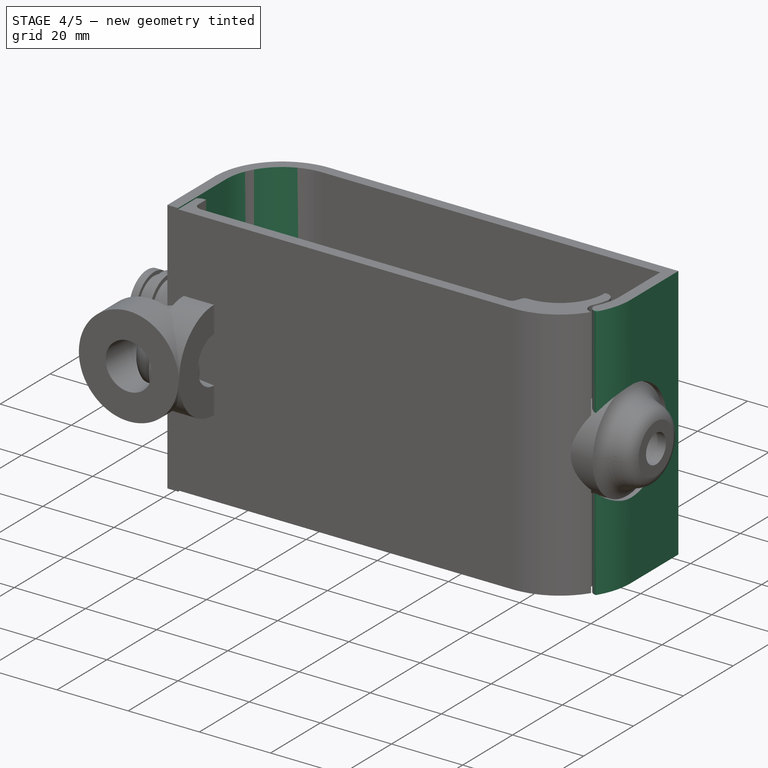
[diagram: stage 4 of 5 — iso view after this stage's code; geometry added in this stage tinted green]
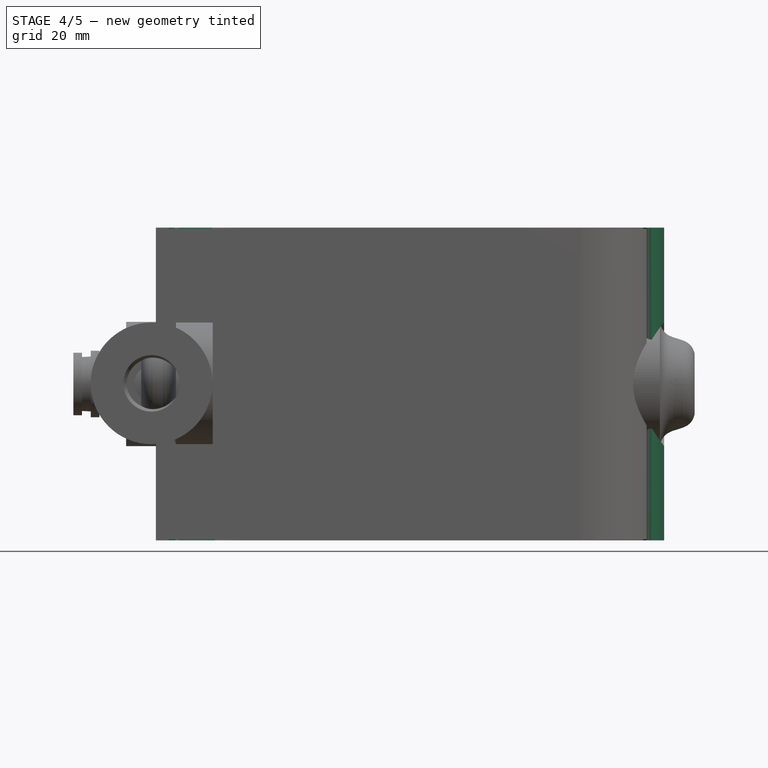
[diagram: stage 4 of 5 — front view after this stage's code; geometry added in this stage tinted green]
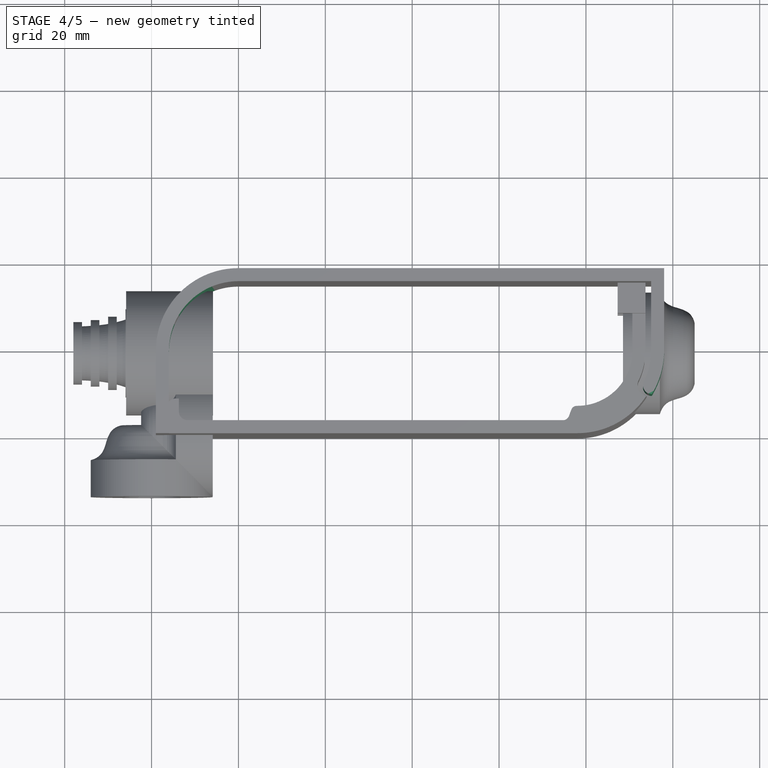
[diagram: stage 4 of 5 — top view after this stage's code; geometry added in this stage tinted green]
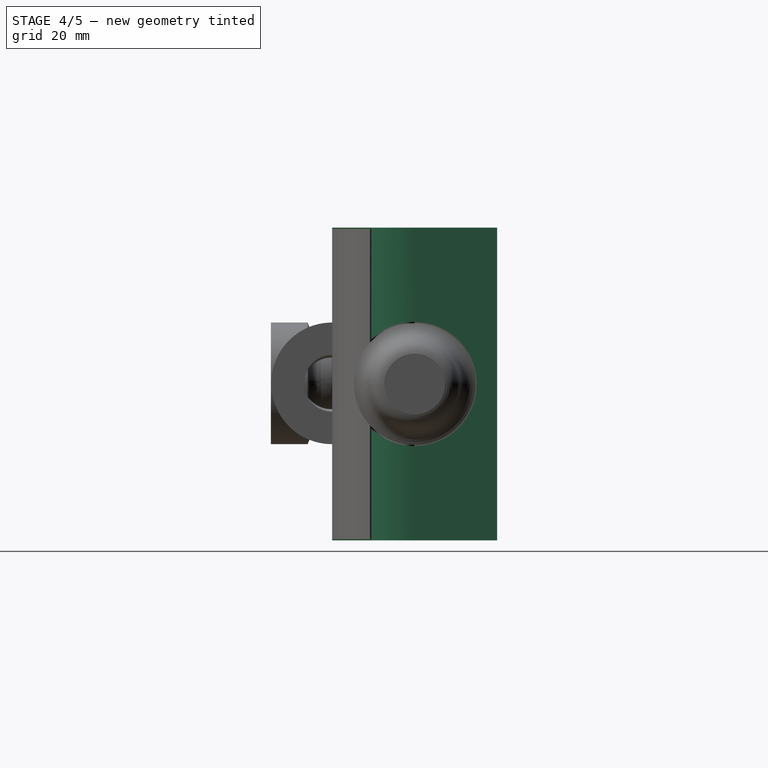
[diagram: stage 4 of 5 — right view after this stage's code; geometry added in this stage tinted green]
FEATURE [Sketcher::SketchObject] Sketch007
  FullyConstrained = true
  sketch-geometry (16):
    g0: LineSegment StartX=4 StartY=0 StartZ=0 EndX=4 EndY=2.4 EndZ=0
    g1: LineSegment StartX=4 StartY=2.4 StartZ=0 EndX=7 EndY=2.4 EndZ=0
    g2: LineSegment StartX=4 StartY=0 StartZ=0 EndX=5.7 EndY=0 EndZ=0
    g3: LineSegment StartX=5.7 StartY=0 StartZ=0 EndX=5.7 EndY=-5.6 EndZ=0
    g4-g8: Circle x5 (B-spline internal-alignment scaffolding for g9; pole/knot coordinates omitted)
    g9: BSplineCurve PolesCount=5 KnotsCount=3 Degree=3 IsPeriodic=0
    g10: GeomPoint X=7 Y=2.4 Z=0
    g11: GeomPoint X=10.4582 Y=-1.55472 Z=0
    g12: GeomPoint X=14 Y=-5.6 Z=0
    g13: LineSegment StartX=14 StartY=-5.6 StartZ=0 EndX=14 EndY=-14.1 EndZ=0
    g14: LineSegment StartX=14 StartY=-14.1 StartZ=0 EndX=6.5 EndY=-14.1 EndZ=0
    g15: LineSegment StartX=5.7 StartY=-5.6 StartZ=0 EndX=6.5 EndY=-14.1 EndZ=0
  constraints (28):
    c: Distance(g0) = 2.4
    c: Vertical(g0)
    c: Block(g0)
    c: Coincident(g1,g0)
    c: Horizontal(g1)
    c: Distance(g1) = 3
    c: Coincident(g2,g0)
    c: Horizontal(g2)
    c: Distance(g2) = 1.7
    c: Coincident(g3,g2)
    c: Vertical(g3)
    c: Distance(g3) = 5.6
    c: Coincident(g9,g1)
    c: Weight(g4) = 1
    c: Equal(g4, g5-g8) x4
    c: InternalAlignment(g4-g8 -> g9) x5
    c: InternalAlignment(g10,g9)
    c: InternalAlignment(g11,g9)
    c: InternalAlignment(g12,g9)
    c: Block(g9)
    c: Coincident(g13,g9)
    c: Vertical(g13)
    c: Distance(g13) = 8.5
    c: Coincident(g14,g13)
    c: Horizontal(g14)
    c: Distance(g14) = 7.5
    c: Coincident(g15,g3)
    c: Coincident(g15,g14)
FEATURE [Part::Feature] Face
  shape: bbox 10 x 16.5 x 2e-07 mm, 1 faces, 0 solids (baked)
FEATURE [Part::Revolution] Revolve  label="plugHousing"
  Angle = 360
  Axis = (0,1,0)
  Base = (0,0,0)
  FaceMakerClass = Part::FaceMakerBullseye
  Placement = pos=(0,0,36.15) rot=(0,0,1;0rad)
  Solid = false
  Source = -> Face
  Symmetric = false
FEATURE [Part::Feature] Face001
  shape: bbox 10 x 16.5 x 2e-07 mm, 1 faces, 0 solids (baked)
FEATURE [Part::Revolution] Revolve001  label="plugHousing001"
  Angle = 360
  Axis = (0,1,0)
  Base = (0,0,0)
  FaceMakerClass = Part::FaceMakerBullseye
  Placement = pos=(0,0,36.15) rot=(0,0,1;0rad)
  Solid = false
  Source = -> Face001
  Symmetric = false
FEATURE [Part::MultiFuse] Fusion001  label="plugHousing002"
  Placement = pos=(0,0,0) rot=(0,0,1;1.5708rad)
  Shapes = -> [Revolve001,Revolve]
FEATURE [Part::Feature] Face002
  shape: bbox 10 x 16.5 x 2e-07 mm, 1 faces, 0 solids (baked)
FEATURE [Part::Revolution] Revolve003  label="plugHousing005"
  Angle = 360
  Axis = (0,1,0)
  Base = (0,0,0)
  FaceMakerClass = Part::FaceMakerBullseye
  Placement = pos=(0,0,36.15) rot=(0,0,1;0rad)
  Solid = false
  Source = -> Face002
  Symmetric = false
FEATURE [Part::Feature] Face003
  shape: bbox 10 x 16.5 x 2e-07 mm, 1 faces, 0 solids (baked)
FEATURE [Part::Revolution] Revolve002  label="plugHousing003"
  Angle = 360
  Axis = (0,1,0)
  Base = (0,0,0)
  FaceMakerClass = Part::FaceMakerBullseye
  Placement = pos=(0,0,36.15) rot=(0,0,1;0rad)
  Solid = false
  Source = -> Face003
  Symmetric = false
FEATURE [Part::MultiFuse] Fusion002  label="plugHousing004"
  Placement = pos=(0,0,0) rot=(0,0,1;1.5708rad)
  Shapes = -> [Revolve002,Revolve003]
FEATURE [Part::MultiFuse] Fusion003  label="plugHousing006"
  Placement = pos=(0,19,0) rot=(0,0,1;-3.14159rad)
  Shapes = -> [Fusion002,Fusion001]
FEATURE [Part::MultiFuse] Fusion004  label="plugHousing009"
  Placement = pos=(0,0,0) rot=(0,0,1;1.5708rad)
  Shapes = -> [Revolve004,Revolve007]
FEATURE [Part::MultiFuse] Fusion006  label="plugHousing013"
  Placement = pos=(0,19,0) rot=(0,0,1;3.14159rad)
  Shapes = -> [Fusion005,Fusion004]
FEATURE [Part::MultiFuse] Fusion007  label="plugHousing014"
  Placement = pos=(122.621,0,-0.15) rot=(0,0,1;0rad)
  Shapes = -> [Fusion003,Fusion006]
FEATURE [Part::Feature] Face008
  shape: bbox 10 x 16.5 x 2e-07 mm, 1 faces, 0 solids (baked)
FEATURE [Part::Revolution] Revolve011  label="plugHousing021"
  Angle = 360
  Axis = (0,1,0)
  Base = (0,0,0)
  FaceMakerClass = Part::FaceMakerBullseye
  Placement = pos=(0,0,36.15) rot=(0,0,1;0rad)
  Solid = false
  Source = -> Face008
  Symmetric = false
FEATURE [Part::Feature] Face009
  shape: bbox 10 x 16.5 x 2e-07 mm, 1 faces, 0 solids (baked)
FEATURE [Part::Revolution] Revolve012  label="plugHousing022"
  Angle = 360
  Axis = (0,1,0)
  Base = (0,0,0)
  FaceMakerClass = Part::FaceMakerBullseye
  Placement = pos=(0,0,36.15) rot=(0,0,1;0rad)
  Solid = false
  Source = -> Face009
  Symmetric = false
FEATURE [Part::Cylinder] Cylinder006
  Angle = 360
  AttacherType = Attacher::AttachEngine3D
  Height = 20
  Placement = pos=(0,0,36.15) rot=(0,0,1;0rad)
  Radius = 14.3
FEATURE [Part::Cylinder] Cylinder007
  Angle = 360
  AttacherType = Attacher::AttachEngine3D
  Height = 10
  Placement = pos=(0,0,36.15) rot=(0,0,1;0rad)
  Radius = 4
FEATURE [Part::MultiFuse] Fusion026  label="removeToCreteHoleForPlugHousing"
  Placement = pos=(70,19,36) rot=(0,1,0;1.5708rad)
  Shapes = -> [Cylinder006,Cylinder007]
FEATURE [Part::Cut] Cut003  label="top002"
  Base = -> Cut001
  Tool = -> Fusion007
FEATURE [Part::Revolution] Revolve008  label="plugHousing015"
  Angle = 360
  Axis = (0,1,0)
  Base = (0,0,0)
  FaceMakerClass = Part::FaceMakerBullseye
  Placement = pos=(0,0,36.15) rot=(0,0,1;0rad)
  Solid = false
  Source = -> Face010
  Symmetric = false
FEATURE [Part::MultiFuse] Fusion013  label="plugHousing020"
  Placement = pos=(0,0,0) rot=(0,0,1;1.5708rad)
  Shapes = -> [Revolve008,Revolve012]
FEATURE [Part::Cut] Cut004  label="top003"
  Base = -> Cut003
  Placement = pos=(1,0,0) rot=(0,0,1;0rad)
  Tool = -> Fusion026
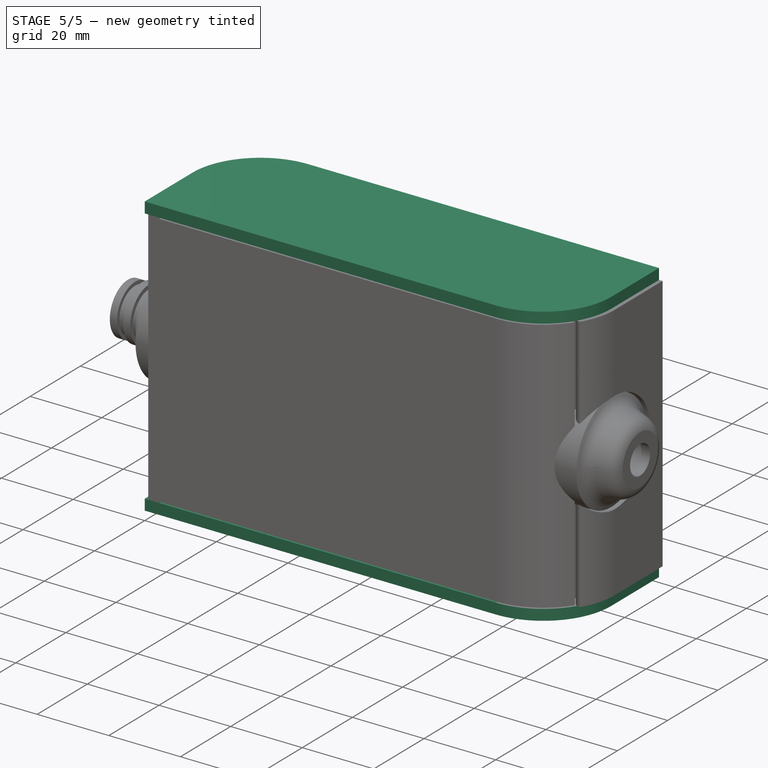
[diagram: stage 5 of 5 — iso view after this stage's code; geometry added in this stage tinted green]
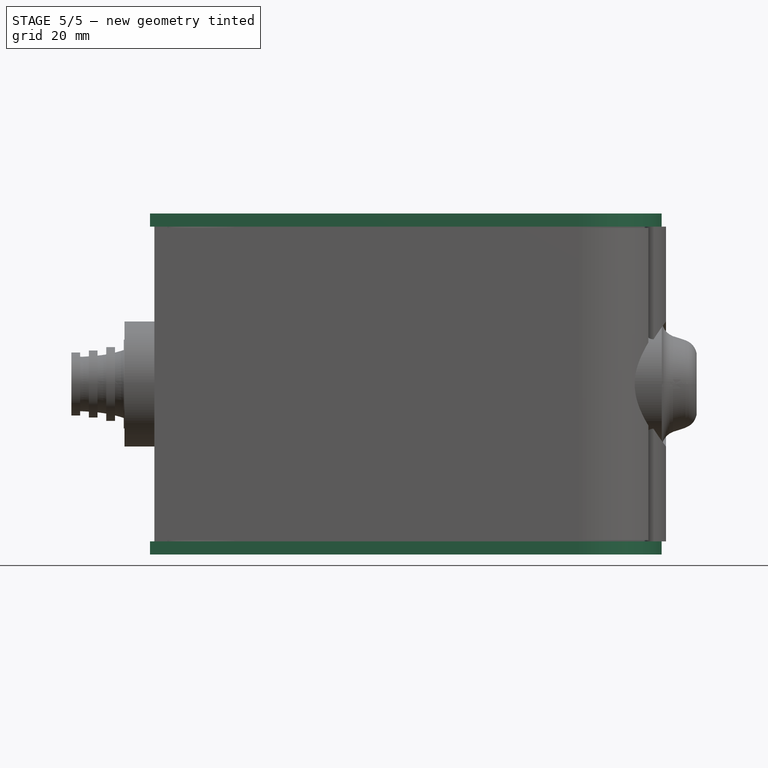
[diagram: stage 5 of 5 — front view after this stage's code; geometry added in this stage tinted green]
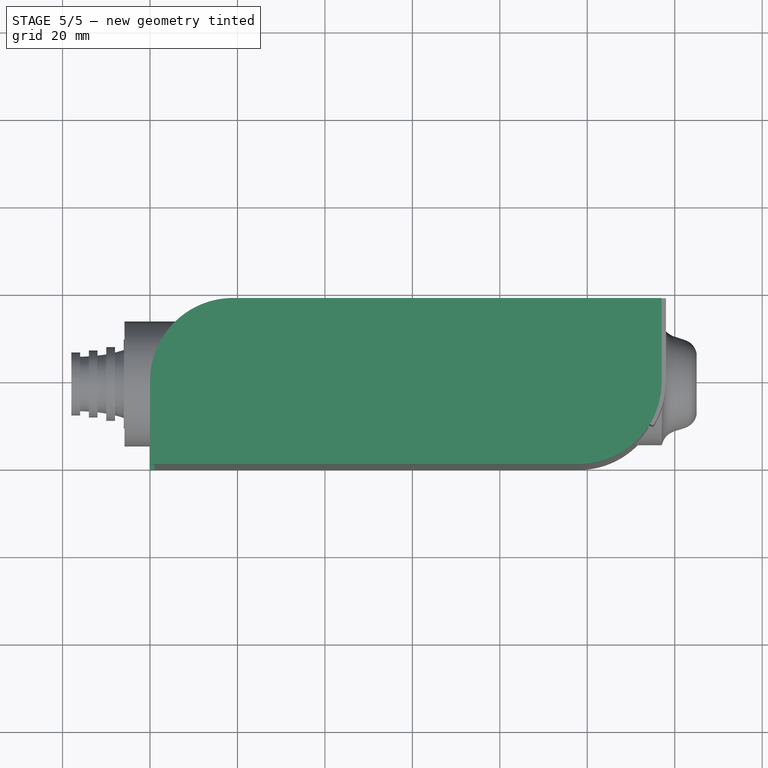
[diagram: stage 5 of 5 — top view after this stage's code; geometry added in this stage tinted green]
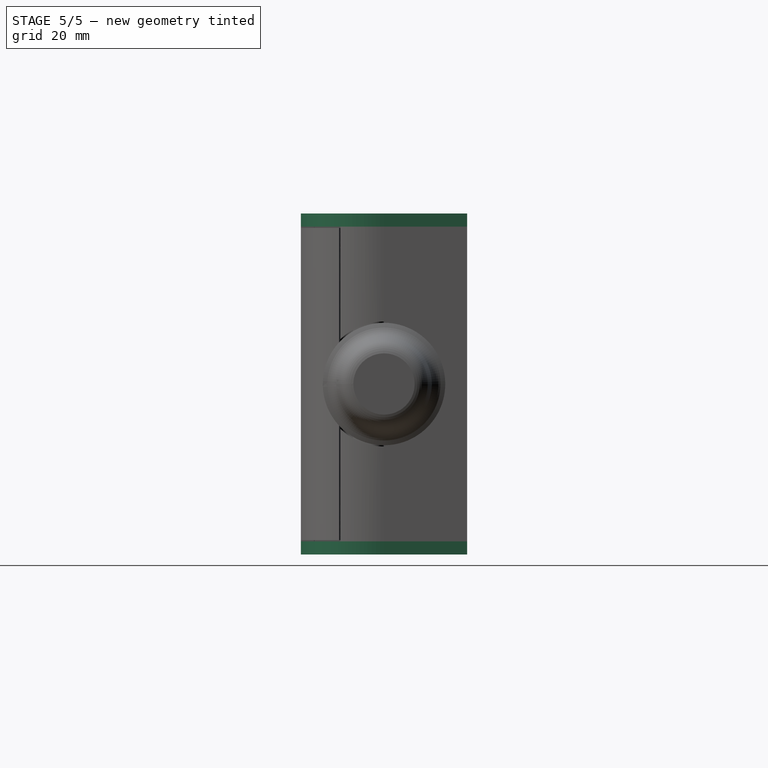
[diagram: stage 5 of 5 — right view after this stage's code; geometry added in this stage tinted green]
FEATURE [Sketcher::SketchObject] Sketch002  label="topSketch001"
  FullyConstrained = true
  sketch-geometry (6):
    g0: LineSegment StartX=19 StartY=38 StartZ=0 EndX=117 EndY=38 EndZ=0
    g1: ArcOfCircle CenterX=19 CenterY=19 CenterZ=0 NormalX=0 NormalY=0 NormalZ=1 AngleXU=0 Radius=19 StartAngle=1.5708 EndAngle=3.14159
    g2: LineSegment StartX=117 StartY=38 StartZ=0 EndX=117 EndY=19 EndZ=0
    g3: LineSegment StartX=98 StartY=1.0161e-12 StartZ=0 EndX=5.22862e-06 EndY=1.0161e-12 EndZ=0
    g4: LineSegment StartX=5.22862e-06 StartY=19 StartZ=0 EndX=5.22862e-06 EndY=1.0161e-12 EndZ=0
    g5: ArcOfCircle CenterX=98 CenterY=19 CenterZ=0 NormalX=0 NormalY=0 NormalZ=1 AngleXU=0 Radius=19 StartAngle=4.71239 EndAngle=6.28319
  constraints (16):
    c: Horizontal(g0)
    c: Distance(g0) = 98
    c: Coincident(g1,g0)
    c: Block(g1)
    c: Coincident(g2,g0)
    c: Vertical(g2)
    c: Distance(g2) = 19
    c: Horizontal(g3)
    c: Coincident(g4,g1)
    c: Vertical(g4)
    c: Coincident(g3,g4)
    c: Block(g3)
    c: Coincident(g5,g2)
    c: Coincident(g5,g3)
    c: Block(g0)
    c: Block(g5)
FEATURE [Part::Extrusion] Extrude002  label="sideA"
  Base = -> Sketch002
  Dir = (0,0,1)
  DirMode = 2
  FaceMakerClass = Part::FaceMakerBullseye
  LengthFwd = 3
  LengthRev = 0
  Placement = pos=(0,0,-3) rot=(0,0,1;0rad)
  Solid = true
  Symmetric = false
FEATURE [Sketcher::SketchObject] Sketch003  label="topSketch002"
  FullyConstrained = true
  sketch-geometry (6):
    g0: LineSegment StartX=19 StartY=38 StartZ=0 EndX=117 EndY=38 EndZ=0
    g1: ArcOfCircle CenterX=19 CenterY=19 CenterZ=0 NormalX=0 NormalY=0 NormalZ=1 AngleXU=0 Radius=19 StartAngle=1.5708 EndAngle=3.14159
    g2: LineSegment StartX=117 StartY=38 StartZ=0 EndX=117 EndY=19 EndZ=0
    g3: LineSegment StartX=98 StartY=1.0161e-12 StartZ=0 EndX=5.22862e-06 EndY=1.0161e-12 EndZ=0
    g4: LineSegment StartX=5.22862e-06 StartY=19 StartZ=0 EndX=5.22862e-06 EndY=1.0161e-12 EndZ=0
    g5: ArcOfCircle CenterX=98 CenterY=19 CenterZ=0 NormalX=0 NormalY=0 NormalZ=1 AngleXU=0 Radius=19 StartAngle=4.71239 EndAngle=6.28319
  constraints (16):
    c: Horizontal(g0)
    c: Distance(g0) = 98
    c: Coincident(g1,g0)
    c: Block(g1)
    c: Coincident(g2,g0)
    c: Vertical(g2)
    c: Distance(g2) = 19
    c: Horizontal(g3)
    c: Coincident(g4,g1)
    c: Vertical(g4)
    c: Coincident(g3,g4)
    c: Block(g3)
    c: Coincident(g5,g2)
    c: Coincident(g5,g3)
    c: Block(g0)
    c: Block(g5)
FEATURE [Part::Extrusion] Extrude003  label="sideB"
  Base = -> Sketch003
  Dir = (0,0,1)
  DirMode = 2
  FaceMakerClass = Part::FaceMakerBullseye
  LengthFwd = 3
  LengthRev = 0
  Placement = pos=(0,0,72) rot=(0,0,1;0rad)
  Solid = true
  Symmetric = false
FEATURE [Sketcher::SketchObject] Sketch004
  FullyConstrained = true
  MapMode = 3
  Placement = pos=(0,0,0) rot=(1,0,0;1.5708rad)
  Support = -> [Extrude]
  sketch-geometry (8):
    g0: Circle CenterX=80.351 CenterY=-67.6202 CenterZ=0 NormalX=0 NormalY=0 NormalZ=1 AngleXU=0 Radius=2
    g1: Circle CenterX=80.351 CenterY=-67.6202 CenterZ=0 NormalX=0 NormalY=0 NormalZ=1 AngleXU=0 Radius=3
    g2: Circle CenterX=80.351 CenterY=-4.92017 CenterZ=0 NormalX=0 NormalY=0 NormalZ=1 AngleXU=0 Radius=2
    g3: Circle CenterX=80.351 CenterY=-4.92017 CenterZ=0 NormalX=0 NormalY=0 NormalZ=1 AngleXU=0 Radius=3
    g4: Circle CenterX=23.851 CenterY=-4.92017 CenterZ=0 NormalX=0 NormalY=0 NormalZ=1 AngleXU=0 Radius=2
    g5: Circle CenterX=23.851 CenterY=-4.92017 CenterZ=0 NormalX=0 NormalY=0 NormalZ=1 AngleXU=0 Radius=3
    g6: Circle CenterX=23.851 CenterY=-67.6202 CenterZ=0 NormalX=0 NormalY=0 NormalZ=1 AngleXU=0 Radius=2
    g7: Circle CenterX=23.851 CenterY=-67.6202 CenterZ=0 NormalX=0 NormalY=0 NormalZ=1 AngleXU=0 Radius=3
  constraints (8):
    c: Block(g3)
    c: Block(g2)
    c: Block(g1)
    c: Block(g0)
    c: Block(g6)
    c: Block(g7)
    c: Block(g4)
    c: Block(g5)
FEATURE [Part::Extrusion] Extrude004
  Base = -> Sketch004
  Dir = (0,-1,2e-16)
  DirMode = 2
  FaceMakerClass = Part::FaceMakerBullseye
  LengthFwd = 6
  LengthRev = 0
  Placement = pos=(0,9,0) rot=(0,0,1;0rad)
  Solid = true
  Symmetric = false
FEATURE [Sketcher::SketchObject] Sketch005
  FullyConstrained = true
  MapMode = 3
  Placement = pos=(0,0,0) rot=(1,0,0;1.5708rad)
  Support = -> [Extrude]
  sketch-geometry (8):
    g0: Circle CenterX=80.351 CenterY=-67.6202 CenterZ=0 NormalX=0 NormalY=0 NormalZ=1 AngleXU=0 Radius=3
    g1: Circle CenterX=80.351 CenterY=-4.92017 CenterZ=0 NormalX=0 NormalY=0 NormalZ=1 AngleXU=0 Radius=3
    g2: Circle CenterX=23.851 CenterY=-4.92017 CenterZ=0 NormalX=0 NormalY=0 NormalZ=1 AngleXU=0 Radius=3
    g3: Circle CenterX=23.851 CenterY=-67.6202 CenterZ=0 NormalX=0 NormalY=0 NormalZ=1 AngleXU=0 Radius=3
    g4: Circle CenterX=23.851 CenterY=-67.6202 CenterZ=0 NormalX=0 NormalY=0 NormalZ=1 AngleXU=0 Radius=5
    g5: Circle CenterX=80.351 CenterY=-67.6202 CenterZ=0 NormalX=0 NormalY=0 NormalZ=1 AngleXU=0 Radius=5
    g6: Circle CenterX=23.851 CenterY=-4.92017 CenterZ=0 NormalX=0 NormalY=0 NormalZ=1 AngleXU=0 Radius=5
    g7: Circle CenterX=80.351 CenterY=-4.92017 CenterZ=0 NormalX=0 NormalY=0 NormalZ=1 AngleXU=0 Radius=5
  constraints (8):
    c: Block(g1)
    c: Block(g0)
    c: Block(g3)
    c: Block(g2)
    c: Block(g5)
    c: Block(g4)
    c: Block(g6)
    c: Block(g7)
FEATURE [Part::Extrusion] Extrude005
  Base = -> Sketch005
  Dir = (0,-1,2e-16)
  DirMode = 2
  FaceMakerClass = Part::FaceMakerBullseye
  LengthFwd = 2
  LengthRev = 0
  Solid = true
  Symmetric = false
FEATURE [Sketcher::SketchObject] Sketch006
  FullyConstrained = true
  MapMode = 3
  Placement = pos=(0,0,0) rot=(1,0,0;1.5708rad)
  sketch-geometry (8):
    g0: Circle CenterX=80.351 CenterY=-67.6202 CenterZ=0 NormalX=0 NormalY=0 NormalZ=1 AngleXU=0 Radius=3
    g1: Circle CenterX=80.351 CenterY=-4.92017 CenterZ=0 NormalX=0 NormalY=0 NormalZ=1 AngleXU=0 Radius=3
    g2: Circle CenterX=23.851 CenterY=-4.92017 CenterZ=0 NormalX=0 NormalY=0 NormalZ=1 AngleXU=0 Radius=3
    g3: Circle CenterX=23.851 CenterY=-67.6202 CenterZ=0 NormalX=0 NormalY=0 NormalZ=1 AngleXU=0 Radius=3
    g4: Circle CenterX=23.851 CenterY=-67.6202 CenterZ=0 NormalX=0 NormalY=0 NormalZ=1 AngleXU=0 Radius=5
    g5: Circle CenterX=80.351 CenterY=-67.6202 CenterZ=0 NormalX=0 NormalY=0 NormalZ=1 AngleXU=0 Radius=5
    g6: Circle CenterX=23.851 CenterY=-4.92017 CenterZ=0 NormalX=0 NormalY=0 NormalZ=1 AngleXU=0 Radius=5
    g7: Circle CenterX=80.351 CenterY=-4.92017 CenterZ=0 NormalX=0 NormalY=0 NormalZ=1 AngleXU=0 Radius=5
  constraints (8):
    c: Block(g1)
    c: Block(g0)
    c: Block(g3)
    c: Block(g2)
    c: Block(g5)
    c: Block(g4)
    c: Block(g6)
    c: Block(g7)
FEATURE [Part::Extrusion] Extrude007
  Base = -> Sketch006
  Dir = (0,-1,2e-16)
  DirMode = 2
  FaceMakerClass = Part::FaceMakerBullseye
  LengthFwd = 2
  LengthRev = 0
  Solid = true
  Symmetric = false
FEATURE [Part::Fillet] Fillet
  Base = -> Extrude007
  Edges = 4 edges r=1.99: [Edge6,Edge12,Edge18,Edge24]
FEATURE [Part::Cut] Cut
  Base = -> Extrude005
  Placement = pos=(0,5,0) rot=(0,0,1;0rad)
  Tool = -> Fillet
FEATURE [Part::MultiFuse] Fusion  label="pCBScrews"
  Placement = pos=(-2.5,0,72.3) rot=(0,0,1;0rad)
  Shapes = -> [Extrude004,Cut]
FEATURE [Part::Feature] Face010
  shape: bbox 10 x 16.5 x 2e-07 mm, 1 faces, 0 solids (baked)
FEATURE [Part::Feature] Face011
  shape: bbox 10 x 16.5 x 2e-07 mm, 1 faces, 0 solids (baked)
FEATURE [Part::Revolution] Revolve014  label="plugHousing026"
  Angle = 360
  Axis = (0,1,0)
  Base = (0,0,0)
  FaceMakerClass = Part::FaceMakerBullseye
  Placement = pos=(0,0,36.15) rot=(0,0,1;0rad)
  Solid = false
  Source = -> Face011
  Symmetric = false
FEATURE [Part::Feature] Face012
  shape: bbox 10 x 16.5 x 2e-07 mm, 1 faces, 0 solids (baked)
FEATURE [Part::Revolution] Revolve009  label="plugHousing016"
  Angle = 360
  Axis = (0,1,0)
  Base = (0,0,0)
  FaceMakerClass = Part::FaceMakerBullseye
  Placement = pos=(0,0,36.15) rot=(0,0,1;0rad)
  Solid = false
  Source = -> Face012
  Symmetric = false
FEATURE [Part::Feature] Face013
  shape: bbox 10 x 16.5 x 2e-07 mm, 1 faces, 0 solids (baked)
FEATURE [Part::Revolution] Revolve015  label="plugHousing027"
  Angle = 360
  Axis = (0,1,0)
  Base = (0,0,0)
  FaceMakerClass = Part::FaceMakerBullseye
  Placement = pos=(0,0,36.15) rot=(0,0,1;0rad)
  Solid = false
  Source = -> Face013
  Symmetric = false
FEATURE [Part::Feature] Face014
  shape: bbox 10 x 16.5 x 2e-07 mm, 1 faces, 0 solids (baked)
FEATURE [Part::Revolution] Revolve010  label="plugHousing017"
  Angle = 360
  Axis = (0,1,0)
  Base = (0,0,0)
  FaceMakerClass = Part::FaceMakerBullseye
  Placement = pos=(0,0,36.15) rot=(0,0,1;0rad)
  Solid = false
  Source = -> Face014
  Symmetric = false
FEATURE [Part::MultiFuse] Fusion015  label="plugHousing024"
  Placement = pos=(0,0,0) rot=(0,0,1;1.5708rad)
  Shapes = -> [Revolve010,Revolve015]
FEATURE [Part::Feature] Face015
  shape: bbox 10 x 16.5 x 2e-07 mm, 1 faces, 0 solids (baked)
FEATURE [Part::Revolution] Revolve013  label="plugHousing025"
  Angle = 360
  Axis = (0,1,0)
  Base = (0,0,0)
  FaceMakerClass = Part::FaceMakerBullseye
  Placement = pos=(0,0,36.15) rot=(0,0,1;0rad)
  Solid = false
  Source = -> Face015
  Symmetric = false
FEATURE [Part::MultiFuse] Fusion011  label="plugHousing018"
  Placement = pos=(0,0,0) rot=(0,0,1;1.5708rad)
  Shapes = -> [Revolve014,Revolve013]
FEATURE [Part::MultiFuse] Fusion012  label="plugHousing019"
  Placement = pos=(0,19,0) rot=(0,0,1;3.14159rad)
  Shapes = -> [Fusion011,Fusion015]
FEATURE [Part::MultiFuse] Fusion014  label="plugHousing023"
  Placement = pos=(0,0,0) rot=(0,0,1;1.5708rad)
  Shapes = -> [Revolve011,Revolve009]
FEATURE [Part::MultiFuse] Fusion016  label="plugHousing028"
  Placement = pos=(0,19,0) rot=(0,0,1;3.14159rad)
  Shapes = -> [Fusion014,Fusion013]
FEATURE [Part::MultiFuse] Fusion017  label="plugHousing029"
  Placement = pos=(122.621,0,-0.15) rot=(0,0,1;0rad)
  Shapes = -> [Fusion016,Fusion012]
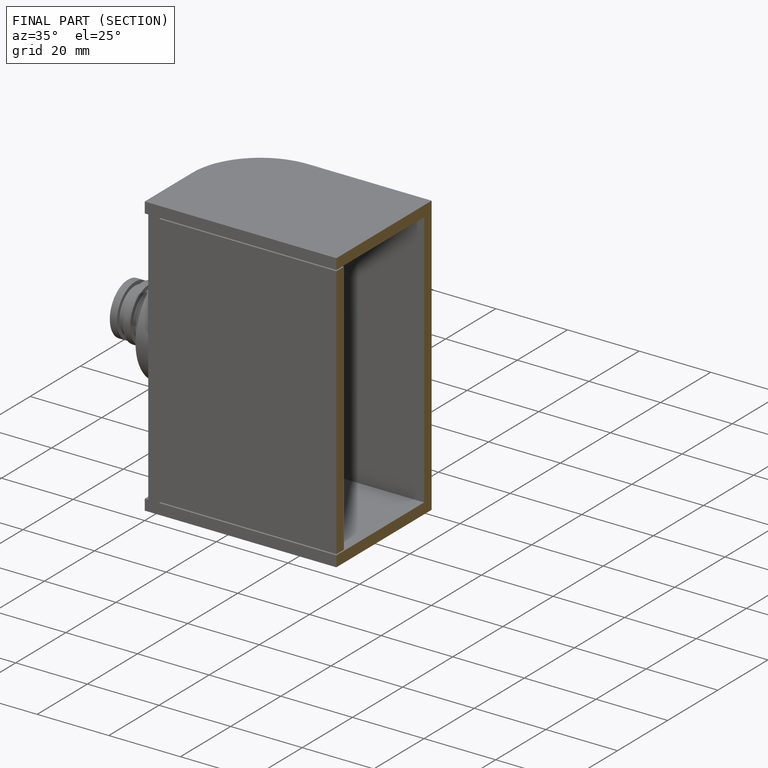
[diagram: finished part — half-section view (interior)]
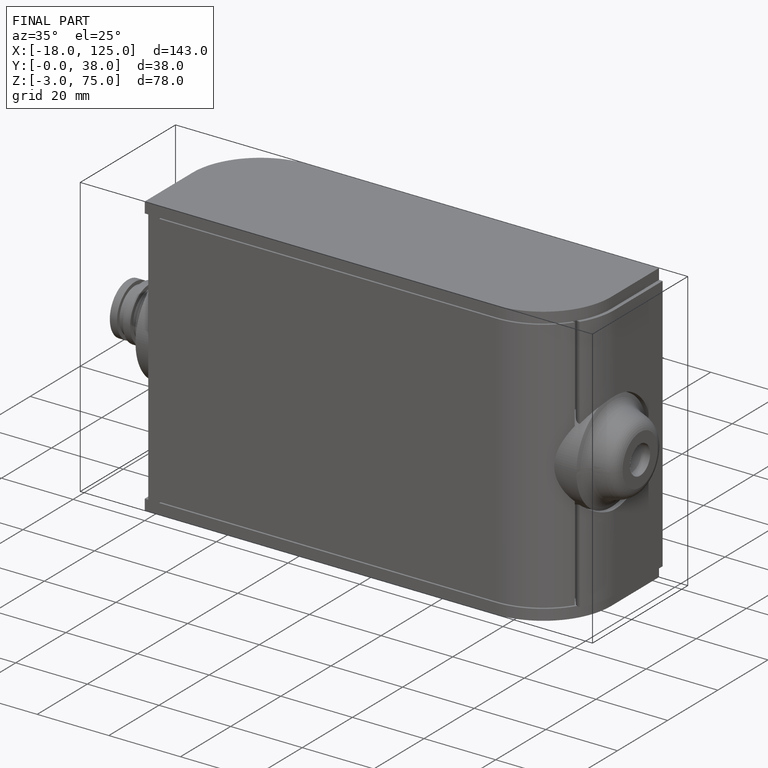
[diagram: finished part — iso view with bounding-box wireframe]
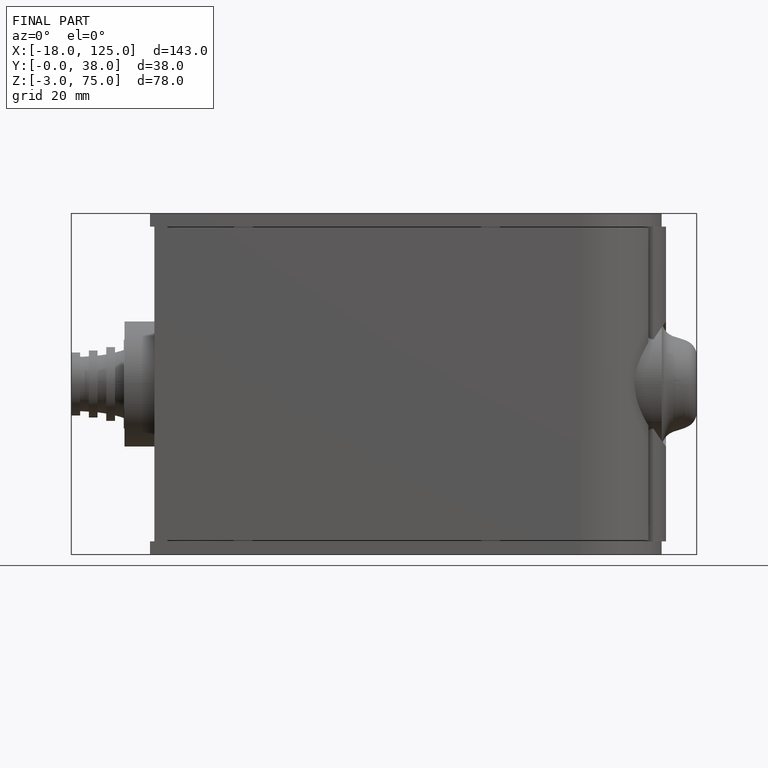
[diagram: finished part — front view with bounding-box wireframe]
